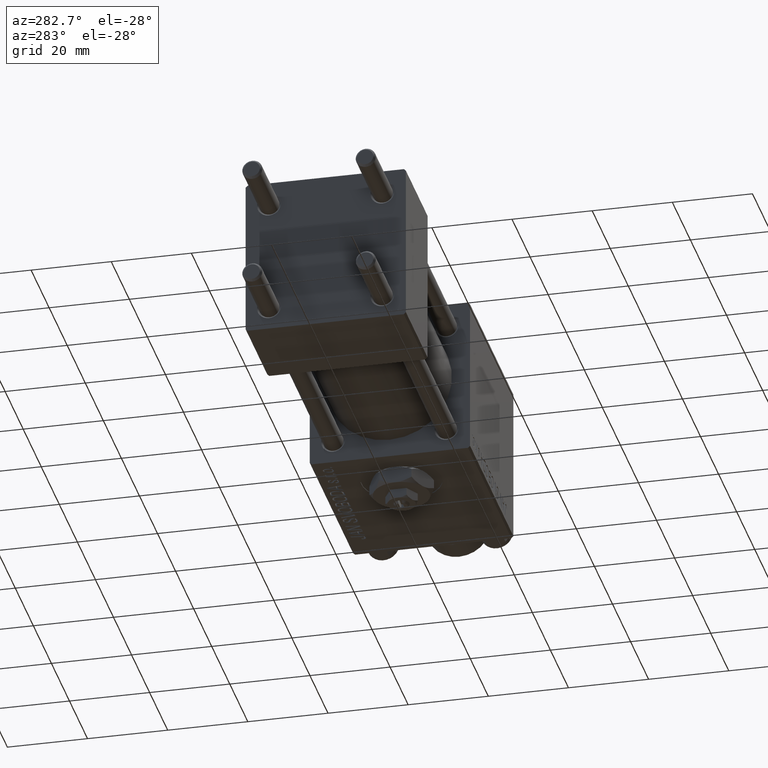
[diagram: clean part render]
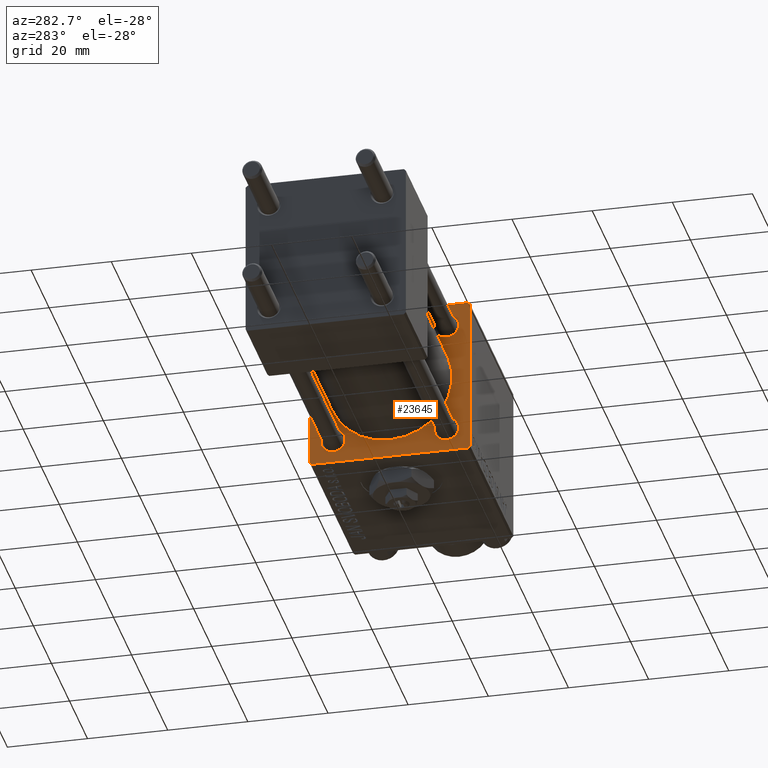
[diagram: same view with one face highlighted and labeled with its STEP entity id]
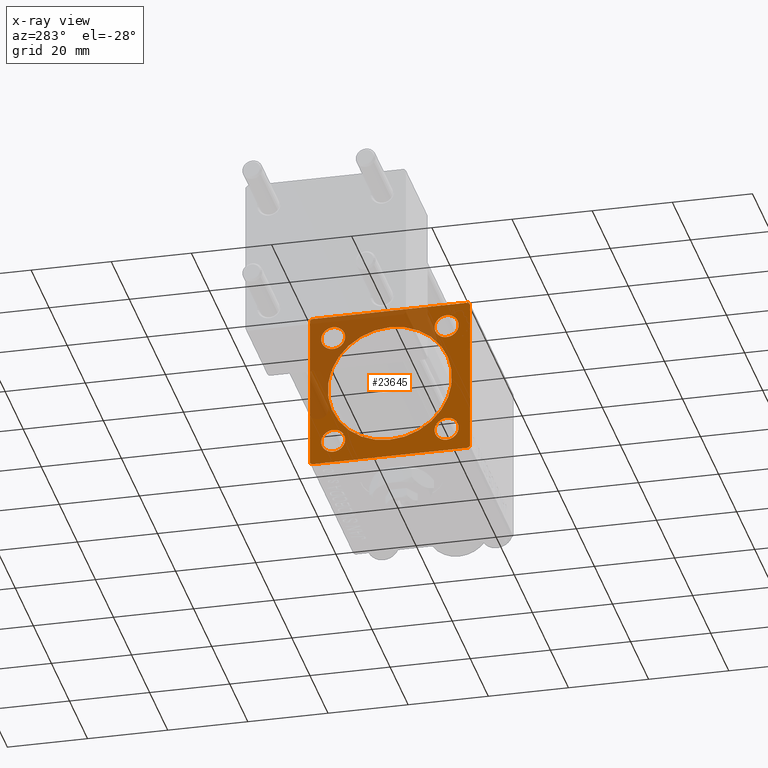
[diagram: x-ray of the same camera — body ghosted, the highlighted face saturated]
A machine part, auxiliary view. The second image highlights one B-rep face of the part: STEP entity #23645.
The next image is the same camera in x-ray: the body ghosted, the highlighted face saturated — about 37% of this face is hidden behind the body in this view.
In plain terms, the highlighted planar face has unit normal (-1, 0, 0).
Its self-contained STEP definition (entity closure, byte-faithful):
#275 = LINE ( 'NONE', #40237, #24723 ) ;
#948 = VERTEX_POINT ( 'NONE', #7698 ) ;
#1155 = VERTEX_POINT ( 'NONE', #24783 ) ;
#1514 = CIRCLE ( 'NONE', #26684, 3.000000000000000888 ) ;
#1641 = LINE ( 'NONE', #34420, #10058 ) ;
#2615 = EDGE_LOOP ( 'NONE', ( #23448, #10055, #36886, #49020, #35349, #40763, #30296, #5423 ) ) ;
#3751 = EDGE_CURVE ( 'NONE', #18471, #18548, #275, .T. ) ;
#3840 = DIRECTION ( 'NONE',  ( 1.000000000000000000, 0.000000000000000000, 0.000000000000000000 ) ) ;
#3983 = EDGE_CURVE ( 'NONE', #1155, #38814, #18034, .T. ) ;
#4155 = DIRECTION ( 'NONE',  ( 0.000000000000000000, -1.000000000000000000, -8.673617379884035472E-17 ) ) ;
#4230 = DIRECTION ( 'NONE',  ( 0.000000000000000000, -0.7071067811865376918, 0.7071067811865574537 ) ) ;
#4322 = VERTEX_POINT ( 'NONE', #37658 ) ;
#4753 = AXIS2_PLACEMENT_3D ( 'NONE', #50961, #34896, #10448 ) ;
#4784 = CARTESIAN_POINT ( 'NONE',  ( 71.00000000000001421, 14.15000000000000036, 14.15000000000000036 ) ) ;
#5423 = ORIENTED_EDGE ( 'NONE', *, *, #10571, .T. ) ;
#5465 = VECTOR ( 'NONE', #33767, 1000.000000000000000 ) ;
#5857 = CARTESIAN_POINT ( 'NONE',  ( 71.00000000000001421, 14.15000000000000036, -11.15000000000002522 ) ) ;
#6106 = CARTESIAN_POINT ( 'NONE',  ( 71.00000000000001421, 19.49999999999996803, 20.00000000000000000 ) ) ;
#6655 = FACE_BOUND ( 'NONE', #29760, .T. ) ;
#7422 = CARTESIAN_POINT ( 'NONE',  ( 71.00000000000001421, -19.74999999999973710, 19.75000000000028422 ) ) ;
#7487 = ORIENTED_EDGE ( 'NONE', *, *, #50674, .T. ) ;
#7635 = AXIS2_PLACEMENT_3D ( 'NONE', #22772, #39038, #39304 ) ;
#7698 = CARTESIAN_POINT ( 'NONE',  ( 71.00000000000001421, 1.898202538678397557E-15, -15.50000000000000000 ) ) ;
#8046 = CARTESIAN_POINT ( 'NONE',  ( 71.00000000000001421, -14.15000000000000036, 11.14999999999999858 ) ) ;
#8241 = VERTEX_POINT ( 'NONE', #12601 ) ;
#8335 = EDGE_CURVE ( 'NONE', #9089, #10899, #13018, .T. ) ;
#8493 = EDGE_CURVE ( 'NONE', #35970, #8241, #41138, .T. ) ;
#8557 = EDGE_CURVE ( 'NONE', #51500, #18471, #14532, .T. ) ;
#8618 = DIRECTION ( 'NONE',  ( 1.000000000000000000, 0.000000000000000000, 0.000000000000000000 ) ) ;
#9089 = VERTEX_POINT ( 'NONE', #42566 ) ;
#9869 = VERTEX_POINT ( 'NONE', #26998 ) ;
#10055 = ORIENTED_EDGE ( 'NONE', *, *, #3751, .T. ) ;
#10058 = VECTOR ( 'NONE', #45289, 1000.000000000000000 ) ;
#10087 = VERTEX_POINT ( 'NONE', #41163 ) ;
#10448 = DIRECTION ( 'NONE',  ( 0.000000000000000000, 0.000000000000000000, 1.000000000000000000 ) ) ;
#10571 = EDGE_CURVE ( 'NONE', #19916, #51500, #21304, .T. ) ;
#10754 = AXIS2_PLACEMENT_3D ( 'NONE', #32459, #49037, #40600 ) ;
#10851 = DIRECTION ( 'NONE',  ( -0.000000000000000000, 0.000000000000000000, 1.000000000000000000 ) ) ;
#10899 = VERTEX_POINT ( 'NONE', #8046 ) ;
#11232 = VERTEX_POINT ( 'NONE', #42910 ) ;
#11907 = DIRECTION ( 'NONE',  ( 0.000000000000000000, 0.000000000000000000, 1.000000000000000000 ) ) ;
#11980 = EDGE_CURVE ( 'NONE', #38814, #1155, #15657, .T. ) ;
#12598 = CARTESIAN_POINT ( 'NONE',  ( 71.00000000000001421, 19.74999999999971578, 19.75000000000026290 ) ) ;
#12601 = CARTESIAN_POINT ( 'NONE',  ( 71.00000000000001421, -19.50000000000001776, 19.99999999999999645 ) ) ;
#12684 = DIRECTION ( 'NONE',  ( 0.000000000000000000, 0.000000000000000000, 1.000000000000000000 ) ) ;
#12747 = CARTESIAN_POINT ( 'NONE',  ( 71.00000000000001421, -14.15000000000000036, -14.15000000000000036 ) ) ;
#12863 = ORIENTED_EDGE ( 'NONE', *, *, #50160, .T. ) ;
#13018 = CIRCLE ( 'NONE', #24795, 3.000000000000004441 ) ;
#14122 = CARTESIAN_POINT ( 'NONE',  ( 71.00000000000001421, 14.15000000000000036, -17.14999999999997726 ) ) ;
#14515 = FACE_OUTER_BOUND ( 'NONE', #2615, .T. ) ;
#14532 = LINE ( 'NONE', #18497, #5465 ) ;
#14774 = EDGE_CURVE ( 'NONE', #10087, #948, #38436, .T. ) ;
#15053 = DIRECTION ( 'NONE',  ( -0.000000000000000000, 0.7071067811865573427, 0.7071067811865376918 ) ) ;
#15598 = CIRCLE ( 'NONE', #40834, 3.000000000000004441 ) ;
#15657 = CIRCLE ( 'NONE', #4753, 2.999999999999976463 ) ;
#16008 = ORIENTED_EDGE ( 'NONE', *, *, #11980, .T. ) ;
#16803 = DIRECTION ( 'NONE',  ( 0.000000000000000000, 0.7071067811865574537, -0.7071067811865376918 ) ) ;
#17176 = CIRCLE ( 'NONE', #51618, 2.999999999999976463 ) ;
#17592 = DIRECTION ( 'NONE',  ( 1.000000000000000000, 0.000000000000000000, 0.000000000000000000 ) ) ;
#17636 = LINE ( 'NONE', #31264, #40377 ) ;
#17843 = CARTESIAN_POINT ( 'NONE',  ( 71.00000000000001421, -14.15000000000000036, 14.15000000000000036 ) ) ;
#18034 = CIRCLE ( 'NONE', #51642, 2.999999999999976463 ) ;
#18471 = VERTEX_POINT ( 'NONE', #38459 ) ;
#18497 = CARTESIAN_POINT ( 'NONE',  ( 71.00000000000001421, 19.99999999999999645, -20.00000000000000000 ) ) ;
#18548 = VERTEX_POINT ( 'NONE', #42405 ) ;
#18727 = PLANE ( 'NONE',  #46523 ) ;
#19398 = CARTESIAN_POINT ( 'NONE',  ( 71.00000000000001421, -20.00000000000000355, 19.50000000000002487 ) ) ;
#19916 = VERTEX_POINT ( 'NONE', #32594 ) ;
#20280 = EDGE_LOOP ( 'NONE', ( #7487, #45341 ) ) ;
#21149 = ORIENTED_EDGE ( 'NONE', *, *, #47235, .T. ) ;
#21304 = LINE ( 'NONE', #49473, #28196 ) ;
#21389 = EDGE_LOOP ( 'NONE', ( #25074, #21149 ) ) ;
#22772 = CARTESIAN_POINT ( 'NONE',  ( 71.00000000000001421, 0.000000000000000000, 0.000000000000000000 ) ) ;
#23397 = DIRECTION ( 'NONE',  ( 0.000000000000000000, 8.673617379884036705E-17, -1.000000000000000000 ) ) ;
#23448 = ORIENTED_EDGE ( 'NONE', *, *, #8557, .T. ) ;
#23645 = ADVANCED_FACE ( 'NONE', ( #6655, #26371, #41900, #42668, #30559, #14515 ), #18727, .T. ) ;
#23663 = CARTESIAN_POINT ( 'NONE',  ( 71.00000000000001421, 19.49999999999999645, -20.00000000000000000 ) ) ;
#24019 = DIRECTION ( 'NONE',  ( 1.000000000000000000, 0.000000000000000000, 0.000000000000000000 ) ) ;
#24428 = VECTOR ( 'NONE', #15053, 1000.000000000000114 ) ;
#24723 = VECTOR ( 'NONE', #4230, 999.9999999999998863 ) ;
#24783 = CARTESIAN_POINT ( 'NONE',  ( 71.00000000000001421, -14.15000000000000036, -17.14999999999997726 ) ) ;
#24795 = AXIS2_PLACEMENT_3D ( 'NONE', #17843, #17592, #46260 ) ;
#24799 = EDGE_CURVE ( 'NONE', #36235, #34779, #17176, .T. ) ;
#24891 = CIRCLE ( 'NONE', #43348, 2.999999999999976463 ) ;
#25074 = ORIENTED_EDGE ( 'NONE', *, *, #14774, .T. ) ;
#26371 = FACE_BOUND ( 'NONE', #43509, .T. ) ;
#26684 = AXIS2_PLACEMENT_3D ( 'NONE', #39838, #3840, #31965 ) ;
#26998 = CARTESIAN_POINT ( 'NONE',  ( 71.00000000000001421, 19.99999999999999645, 19.49999999999998579 ) ) ;
#28013 = DIRECTION ( 'NONE',  ( 0.000000000000000000, 0.000000000000000000, 1.000000000000000000 ) ) ;
#28196 = VECTOR ( 'NONE', #48942, 1000.000000000000114 ) ;
#28793 = DIRECTION ( 'NONE',  ( 1.000000000000000000, 0.000000000000000000, 0.000000000000000000 ) ) ;
#29760 = EDGE_LOOP ( 'NONE', ( #32672, #12863 ) ) ;
#30296 = ORIENTED_EDGE ( 'NONE', *, *, #40388, .T. ) ;
#30312 = CARTESIAN_POINT ( 'NONE',  ( 71.00000000000001421, 0.000000000000000000, 0.000000000000000000 ) ) ;
#30522 = EDGE_CURVE ( 'NONE', #4322, #11232, #49975, .T. ) ;
#30559 = FACE_BOUND ( 'NONE', #21389, .T. ) ;
#31138 = CIRCLE ( 'NONE', #7635, 15.50000000000000000 ) ;
#31264 = CARTESIAN_POINT ( 'NONE',  ( 71.00000000000001421, -20.00000000000000355, 19.99999999999999645 ) ) ;
#31965 = DIRECTION ( 'NONE',  ( 0.000000000000000000, 0.000000000000000000, 1.000000000000000000 ) ) ;
#32459 = CARTESIAN_POINT ( 'NONE',  ( 71.00000000000001421, 0.000000000000000000, 0.000000000000000000 ) ) ;
#32594 = CARTESIAN_POINT ( 'NONE',  ( 71.00000000000001421, 19.99999999999999645, -19.50000000000000000 ) ) ;
#32672 = ORIENTED_EDGE ( 'NONE', *, *, #8335, .T. ) ;
#32682 = CARTESIAN_POINT ( 'NONE',  ( 71.00000000000001421, 14.15000000000000036, -14.15000000000000036 ) ) ;
#33767 = DIRECTION ( 'NONE',  ( 0.000000000000000000, -1.000000000000000000, 0.000000000000000000 ) ) ;
#34420 = CARTESIAN_POINT ( 'NONE',  ( 71.00000000000001421, 19.99999999999999645, 20.00000000000000000 ) ) ;
#34779 = VERTEX_POINT ( 'NONE', #5857 ) ;
#34896 = DIRECTION ( 'NONE',  ( 1.000000000000000000, 0.000000000000000000, 0.000000000000000000 ) ) ;
#35113 = CARTESIAN_POINT ( 'NONE',  ( 71.00000000000001421, -14.15000000000000036, -11.15000000000002522 ) ) ;
#35349 = ORIENTED_EDGE ( 'NONE', *, *, #8493, .F. ) ;
#35957 = CARTESIAN_POINT ( 'NONE',  ( 71.00000000000001421, 19.99999999999999645, 20.00000000000000000 ) ) ;
#35970 = VERTEX_POINT ( 'NONE', #6106 ) ;
#36235 = VERTEX_POINT ( 'NONE', #14122 ) ;
#36466 = EDGE_CURVE ( 'NONE', #11232, #4322, #1514, .T. ) ;
#36886 = ORIENTED_EDGE ( 'NONE', *, *, #46650, .F. ) ;
#37658 = CARTESIAN_POINT ( 'NONE',  ( 71.00000000000001421, 14.15000000000000036, 11.14999999999999858 ) ) ;
#37690 = ORIENTED_EDGE ( 'NONE', *, *, #36466, .T. ) ;
#38436 = CIRCLE ( 'NONE', #10754, 15.50000000000000000 ) ;
#38459 = CARTESIAN_POINT ( 'NONE',  ( 71.00000000000001421, -19.50000000000002487, -20.00000000000000000 ) ) ;
#38793 = ORIENTED_EDGE ( 'NONE', *, *, #3983, .T. ) ;
#38814 = VERTEX_POINT ( 'NONE', #35113 ) ;
#39038 = DIRECTION ( 'NONE',  ( 1.000000000000000000, 0.000000000000000000, 0.000000000000000000 ) ) ;
#39240 = EDGE_CURVE ( 'NONE', #35970, #9869, #48659, .T. ) ;
#39304 = DIRECTION ( 'NONE',  ( 0.000000000000000000, 0.000000000000000000, -1.000000000000000000 ) ) ;
#39838 = CARTESIAN_POINT ( 'NONE',  ( 71.00000000000001421, 14.15000000000000036, 14.15000000000000036 ) ) ;
#39854 = VECTOR ( 'NONE', #4155, 1000.000000000000000 ) ;
#39998 = DIRECTION ( 'NONE',  ( 1.000000000000000000, 0.000000000000000000, 0.000000000000000000 ) ) ;
#40237 = CARTESIAN_POINT ( 'NONE',  ( 71.00000000000001421, -19.75000000000028066, -19.74999999999973355 ) ) ;
#40314 = CARTESIAN_POINT ( 'NONE',  ( 71.00000000000001421, -14.15000000000000036, 14.15000000000000036 ) ) ;
#40377 = VECTOR ( 'NONE', #23397, 1000.000000000000000 ) ;
#40388 = EDGE_CURVE ( 'NONE', #9869, #19916, #1641, .T. ) ;
#40600 = DIRECTION ( 'NONE',  ( 0.000000000000000000, 0.000000000000000000, -1.000000000000000000 ) ) ;
#40711 = AXIS2_PLACEMENT_3D ( 'NONE', #4784, #39998, #44488 ) ;
#40763 = ORIENTED_EDGE ( 'NONE', *, *, #39240, .T. ) ;
#40834 = AXIS2_PLACEMENT_3D ( 'NONE', #40314, #24019, #11907 ) ;
#41138 = LINE ( 'NONE', #35957, #39854 ) ;
#41163 = CARTESIAN_POINT ( 'NONE',  ( 71.00000000000001421, 0.000000000000000000, 15.50000000000000000 ) ) ;
#41630 = ORIENTED_EDGE ( 'NONE', *, *, #30522, .T. ) ;
#41900 = FACE_BOUND ( 'NONE', #20280, .T. ) ;
#42165 = VERTEX_POINT ( 'NONE', #19398 ) ;
#42405 = CARTESIAN_POINT ( 'NONE',  ( 71.00000000000001421, -20.00000000000000000, -19.50000000000001066 ) ) ;
#42566 = CARTESIAN_POINT ( 'NONE',  ( 71.00000000000001421, -14.15000000000000036, 17.15000000000000568 ) ) ;
#42590 = EDGE_LOOP ( 'NONE', ( #16008, #38793 ) ) ;
#42668 = FACE_BOUND ( 'NONE', #42590, .T. ) ;
#42910 = CARTESIAN_POINT ( 'NONE',  ( 71.00000000000001421, 14.15000000000000036, 17.15000000000000568 ) ) ;
#43348 = AXIS2_PLACEMENT_3D ( 'NONE', #44657, #8618, #51147 ) ;
#43509 = EDGE_LOOP ( 'NONE', ( #37690, #41630 ) ) ;
#44488 = DIRECTION ( 'NONE',  ( 0.000000000000000000, 0.000000000000000000, 1.000000000000000000 ) ) ;
#44657 = CARTESIAN_POINT ( 'NONE',  ( 71.00000000000001421, 14.15000000000000036, -14.15000000000000036 ) ) ;
#45289 = DIRECTION ( 'NONE',  ( 0.000000000000000000, 0.000000000000000000, -1.000000000000000000 ) ) ;
#45341 = ORIENTED_EDGE ( 'NONE', *, *, #24799, .T. ) ;
#46260 = DIRECTION ( 'NONE',  ( 0.000000000000000000, 0.000000000000000000, 1.000000000000000000 ) ) ;
#46523 = AXIS2_PLACEMENT_3D ( 'NONE', #30312, #50832, #10851 ) ;
#46650 = EDGE_CURVE ( 'NONE', #42165, #18548, #17636, .T. ) ;
#47235 = EDGE_CURVE ( 'NONE', #948, #10087, #31138, .T. ) ;
#47522 = EDGE_CURVE ( 'NONE', #42165, #8241, #51354, .T. ) ;
#48659 = LINE ( 'NONE', #12598, #50354 ) ;
#48754 = DIRECTION ( 'NONE',  ( 1.000000000000000000, 0.000000000000000000, 0.000000000000000000 ) ) ;
#48942 = DIRECTION ( 'NONE',  ( -0.000000000000000000, -0.7071067811865474617, -0.7071067811865474617 ) ) ;
#49020 = ORIENTED_EDGE ( 'NONE', *, *, #47522, .T. ) ;
#49037 = DIRECTION ( 'NONE',  ( 1.000000000000000000, 0.000000000000000000, 0.000000000000000000 ) ) ;
#49473 = CARTESIAN_POINT ( 'NONE',  ( 71.00000000000001421, 19.74999999999999645, -19.74999999999999645 ) ) ;
#49975 = CIRCLE ( 'NONE', #40711, 3.000000000000000888 ) ;
#50160 = EDGE_CURVE ( 'NONE', #10899, #9089, #15598, .T. ) ;
#50354 = VECTOR ( 'NONE', #16803, 999.9999999999998863 ) ;
#50674 = EDGE_CURVE ( 'NONE', #34779, #36235, #24891, .T. ) ;
#50832 = DIRECTION ( 'NONE',  ( -1.000000000000000000, 0.000000000000000000, -0.000000000000000000 ) ) ;
#50961 = CARTESIAN_POINT ( 'NONE',  ( 71.00000000000001421, -14.15000000000000036, -14.15000000000000036 ) ) ;
#51147 = DIRECTION ( 'NONE',  ( 0.000000000000000000, 0.000000000000000000, 1.000000000000000000 ) ) ;
#51354 = LINE ( 'NONE', #7422, #24428 ) ;
#51500 = VERTEX_POINT ( 'NONE', #23663 ) ;
#51618 = AXIS2_PLACEMENT_3D ( 'NONE', #32682, #48754, #12684 ) ;
#51642 = AXIS2_PLACEMENT_3D ( 'NONE', #12747, #28793, #28013 ) ;